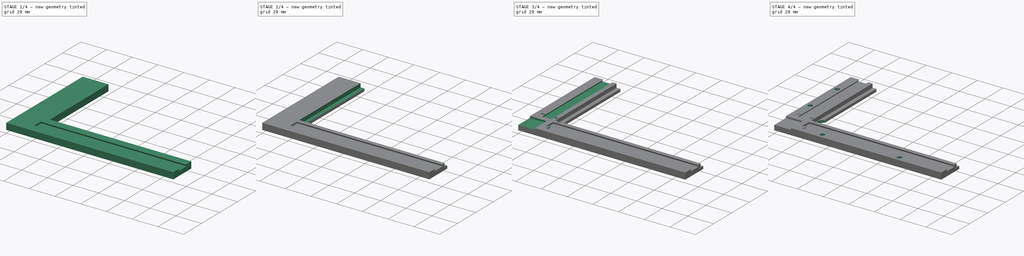
[diagram: build sequence overview — one tinted view per stage of 4, left to right]
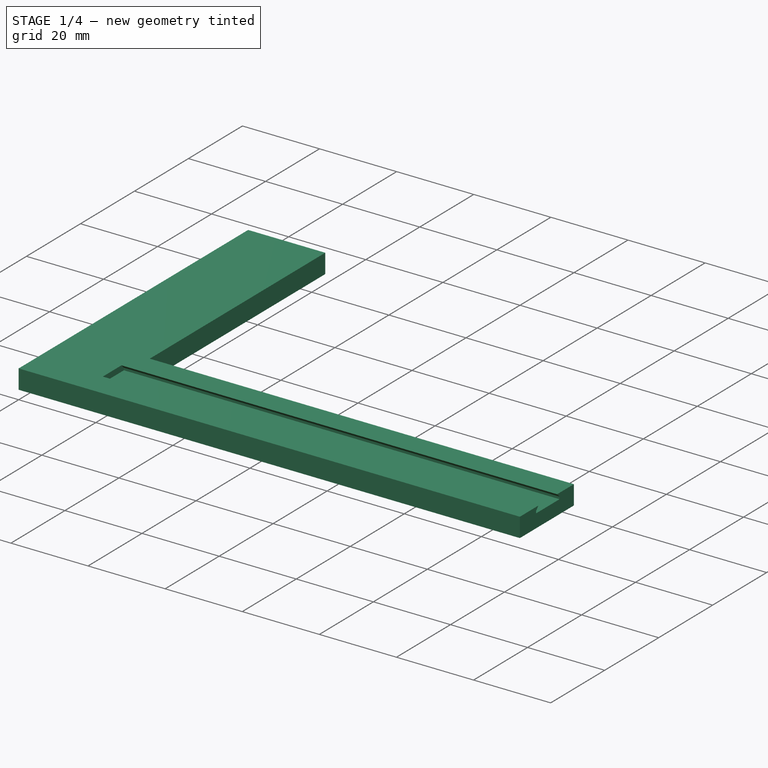
[diagram: stage 1 of 4 — iso view after this stage's code; geometry added in this stage tinted green]
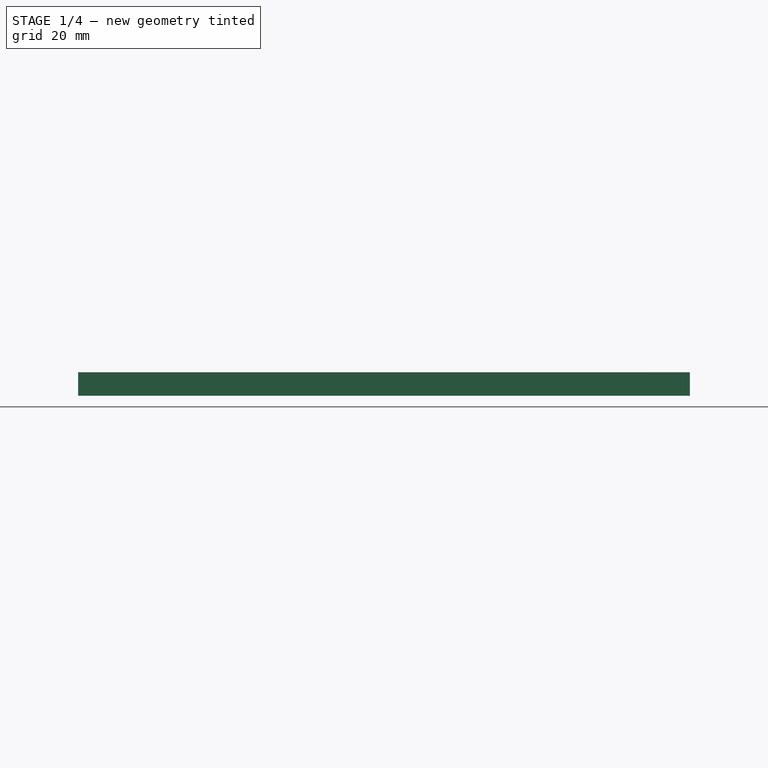
[diagram: stage 1 of 4 — front view after this stage's code; geometry added in this stage tinted green]
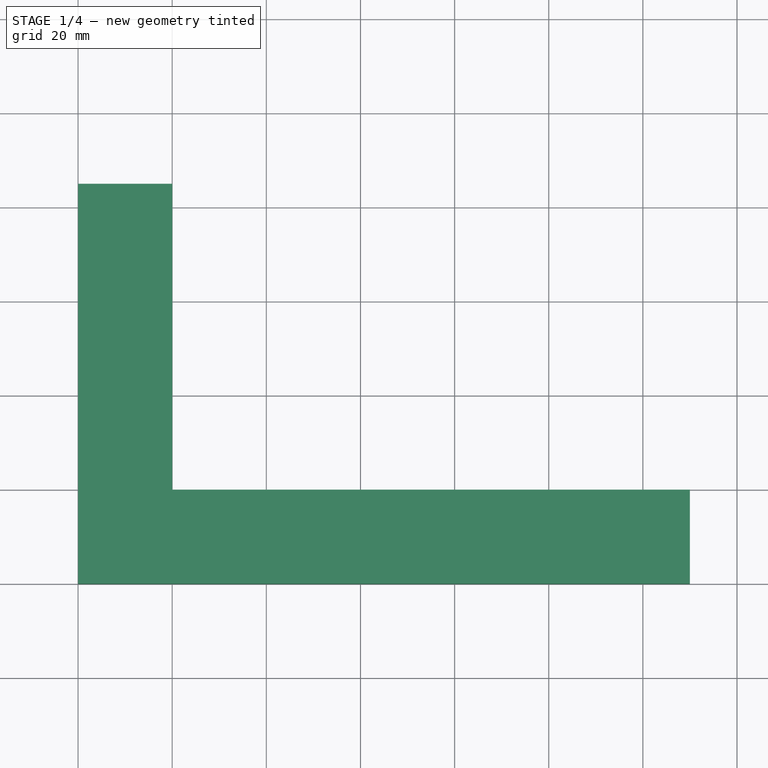
[diagram: stage 1 of 4 — top view after this stage's code; geometry added in this stage tinted green]
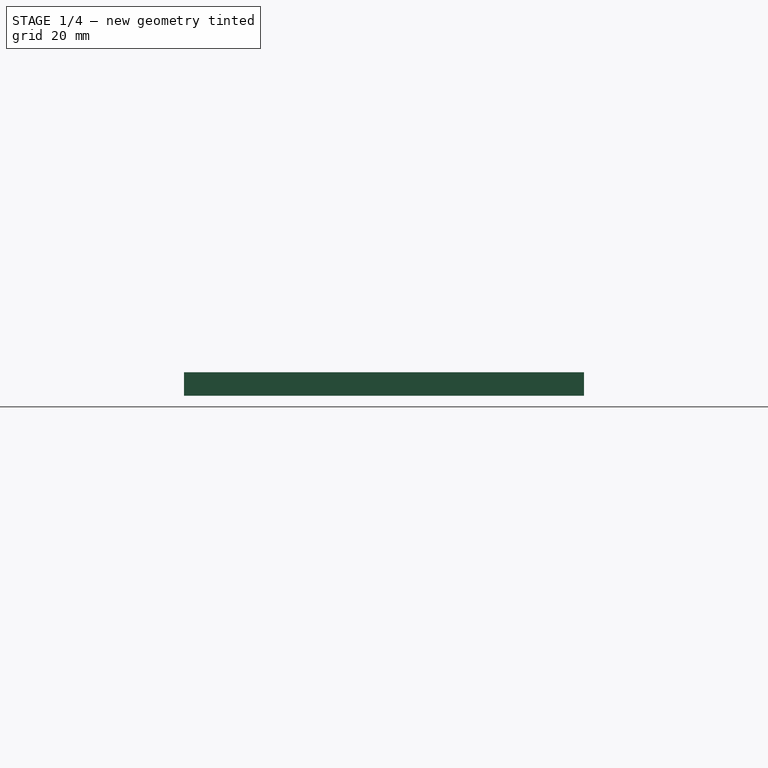
[diagram: stage 1 of 4 — right view after this stage's code; geometry added in this stage tinted green]
FCSTD DOCUMENT  (FreeCAD 0.16R6563 (Git))
Label: tape holder
License: All rights reserved
LicenseURL: http://en.wikipedia.org/wiki/All_rights_reserved
objects: Sketcher::SketchObject×9, PartDesign::Pocket×7, PartDesign::Pad×2
note: 27 computed .brp shape members not serialized (recipe doc carries the construction recipe); baked Part::Feature solids carry a one-line shape summary decoded from their .brp

FEATURE [Sketcher::SketchObject] Sketch
  sketch-geometry (6):
    g0: LineSegment StartX=0 StartY=0 StartZ=0 EndX=0 EndY=85 EndZ=0
    g1: LineSegment StartX=0 StartY=85 StartZ=0 EndX=20 EndY=85 EndZ=0
    g2: LineSegment StartX=20 StartY=85 StartZ=0 EndX=20 EndY=20 EndZ=0
    g3: LineSegment StartX=20 StartY=20 StartZ=0 EndX=130 EndY=20 EndZ=0
    g4: LineSegment StartX=130 StartY=20 StartZ=0 EndX=130 EndY=0 EndZ=0
    g5: LineSegment StartX=130 StartY=0 StartZ=0 EndX=0 EndY=0 EndZ=0
  constraints (17):
    c: Coincident(g-1,g0)
    c: PointOnObject(g0,g-2)
    c: Coincident(g0,g1)
    c: Horizontal(g1)
    c: Coincident(g1,g2)
    c: Vertical(g2)
    c: Coincident(g2,g3)
    c: Horizontal(g3)
    c: Coincident(g3,g4)
    c: Vertical(g4)
    c: Coincident(g4,g5)
    c: Horizontal(g5)
    c: DistanceX(g1) = 20
    c: DistanceY(g4) = -20
    c: Coincident(g-1,g5)
    c: DistanceX(g5) = -130
    c: DistanceY(g0) = 85
FEATURE [PartDesign::Pad] Pad
  Length = 5
  Length2 = 100
  Sketch = -> Sketch
  Type = 0
FEATURE [Sketcher::SketchObject] Sketch001
  Placement = pos=(130,0,0) rot=(0.57735,0.57735,0.57735;2.0944rad)
  Support = -> Pad [Face5]
  sketch-geometry (6):
    g0: LineSegment StartX=6 StartY=3.5 StartZ=0 EndX=6 EndY=4.1 EndZ=0
    g1: LineSegment StartX=6 StartY=4.1 StartZ=0 EndX=8.55752 EndY=6.65752 EndZ=0
    g2: LineSegment StartX=8.55752 StartY=6.65752 StartZ=0 EndX=12.1425 EndY=6.65752 EndZ=0
    g3: LineSegment StartX=12.1425 StartY=6.65752 StartZ=0 EndX=14.7 EndY=4.1 EndZ=0
    g4: LineSegment StartX=14.7 StartY=4.1 StartZ=0 EndX=14.7 EndY=3.5 EndZ=0
    g5: LineSegment StartX=14.7 StartY=3.5 StartZ=0 EndX=6 EndY=3.5 EndZ=0
  constraints (17):
    c: Vertical(g0)
    c: Coincident(g0,g1)
    c: Coincident(g1,g2)
    c: Horizontal(g2)
    c: Coincident(g2,g3)
    c: Coincident(g3,g4)
    c: Vertical(g4)
    c: Coincident(g4,g5)
    c: Horizontal(g5)
    c: Coincident(g0,g5)
    c: DistanceY(g0) = 0.6
    c: DistanceY(g4) = -0.6
    c: DistanceX(g5) = -8.7
    c: Angle(g1) = 0.785398
    c: Angle(g3) = -0.785398
    c: DistanceY(g-1,g0) = 3.5
    c: DistanceX(g-1,g0) = 6
FEATURE [PartDesign::Pocket] Pocket
  Length = 113
  Sketch = -> Sketch001
  Type = 0
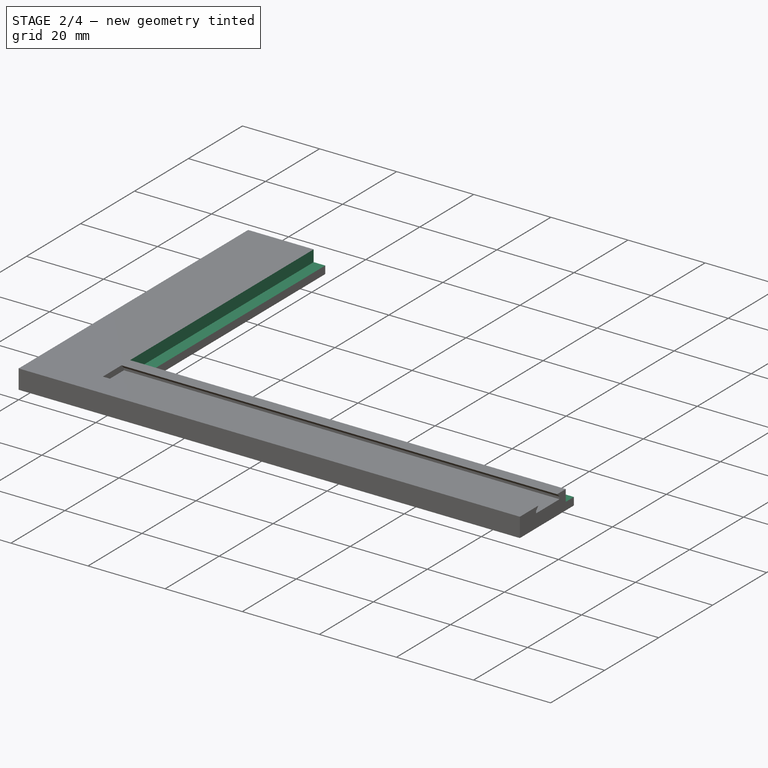
[diagram: stage 2 of 4 — iso view after this stage's code; geometry added in this stage tinted green]
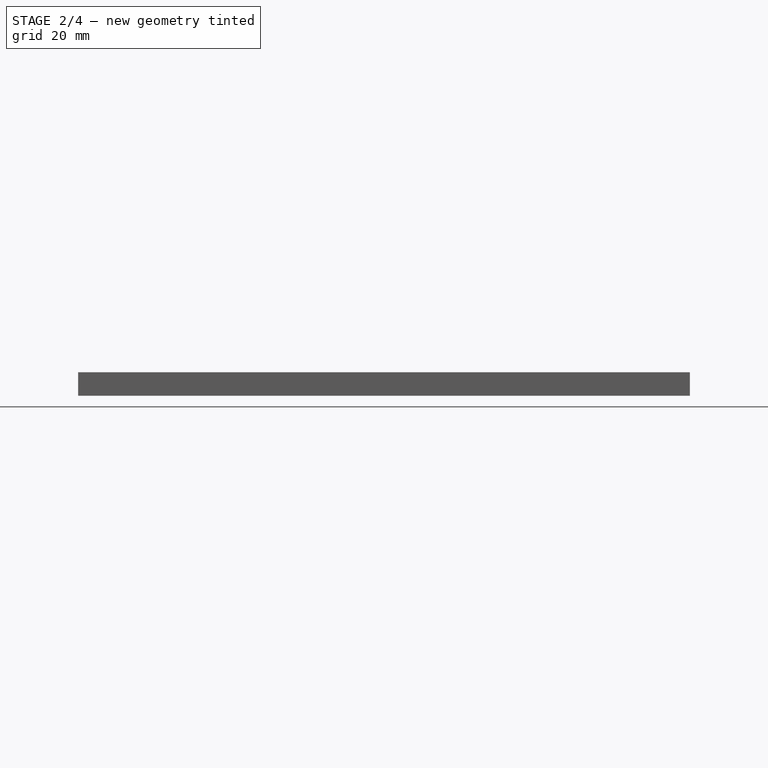
[diagram: stage 2 of 4 — front view after this stage's code; geometry added in this stage tinted green]
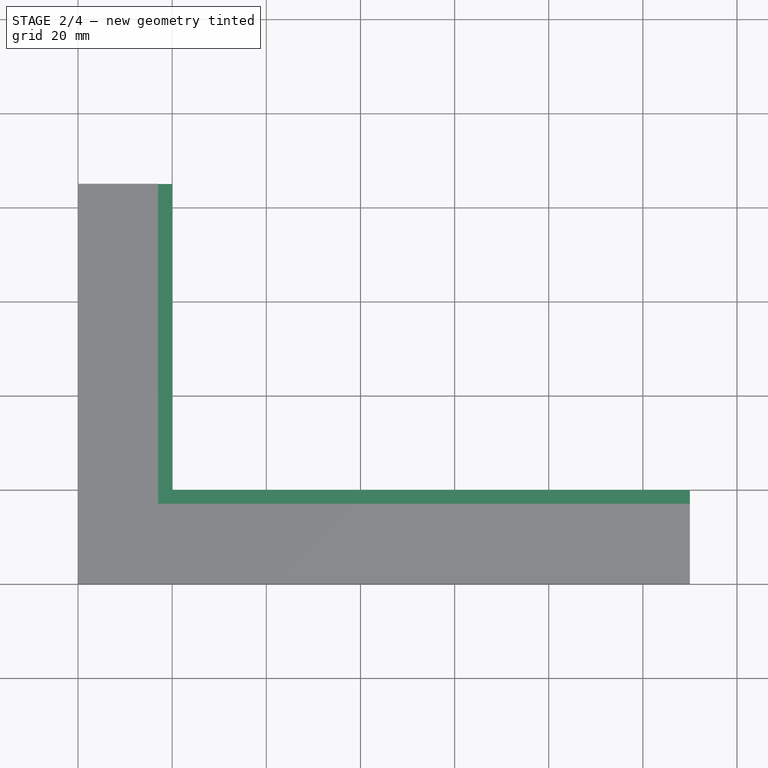
[diagram: stage 2 of 4 — top view after this stage's code; geometry added in this stage tinted green]
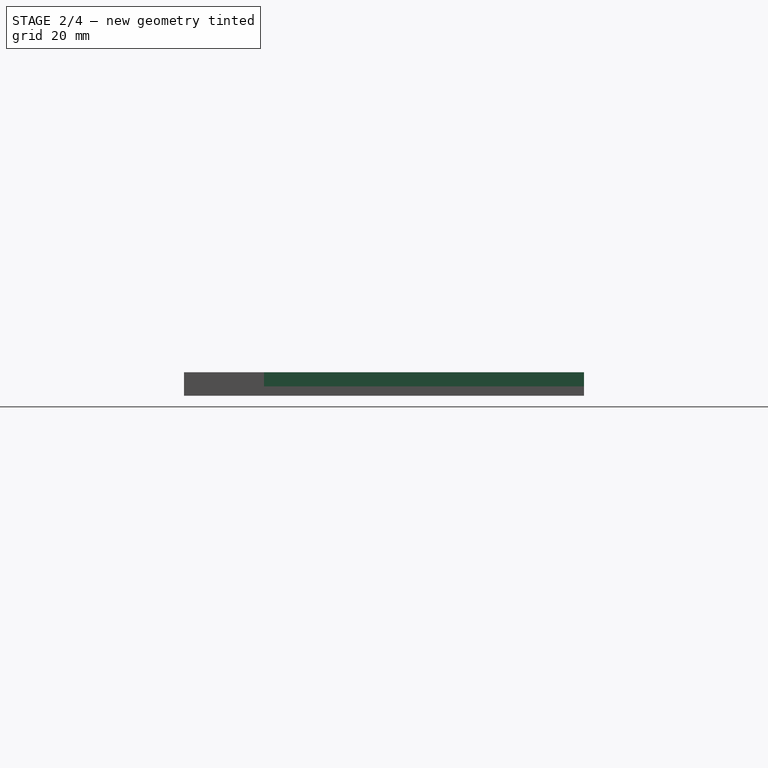
[diagram: stage 2 of 4 — right view after this stage's code; geometry added in this stage tinted green]
FEATURE [Sketcher::SketchObject] Sketch002
  Placement = pos=(130,0,0) rot=(0.57735,0.57735,0.57735;2.0944rad)
  Support = -> Pocket [Face6]
  sketch-geometry (4):
    g0: LineSegment StartX=17 StartY=2 StartZ=0 EndX=21 EndY=2 EndZ=0
    g1: LineSegment StartX=21 StartY=2 StartZ=0 EndX=21 EndY=6 EndZ=0
    g2: LineSegment StartX=21 StartY=6 StartZ=0 EndX=17 EndY=6 EndZ=0
    g3: LineSegment StartX=17 StartY=6 StartZ=0 EndX=17 EndY=2 EndZ=0
  constraints (8):
    c: Coincident(g0,g1)
    c: Coincident(g1,g2)
    c: Coincident(g2,g3)
    c: Coincident(g3,g0)
    c: Horizontal(g0)
    c: Horizontal(g2)
    c: Vertical(g1)
    c: Vertical(g3)
FEATURE [PartDesign::Pocket] Pocket001
  Length = 113
  Sketch = -> Sketch002
  Type = 0
FEATURE [Sketcher::SketchObject] Sketch003
  Placement = pos=(0,85,0) rot=(0,0.707107,0.707107;3.14159rad)
  Support = -> Pocket001 [Face3]
  sketch-geometry (4):
    g0: LineSegment StartX=-17 StartY=2 StartZ=0 EndX=-20.3892 EndY=2 EndZ=0
    g1: LineSegment StartX=-20.3892 StartY=2 StartZ=0 EndX=-20.3892 EndY=6 EndZ=0
    g2: LineSegment StartX=-20.3892 StartY=6 StartZ=0 EndX=-17 EndY=6 EndZ=0
    g3: LineSegment StartX=-17 StartY=6 StartZ=0 EndX=-17 EndY=2 EndZ=0
  constraints (8):
    c: Coincident(g0,g1)
    c: Coincident(g1,g2)
    c: Coincident(g2,g3)
    c: Coincident(g3,g0)
    c: Horizontal(g0)
    c: Horizontal(g2)
    c: Vertical(g1)
    c: Vertical(g3)
FEATURE [PartDesign::Pocket] Pocket002
  Length = 68
  Sketch = -> Sketch003
  Type = 0
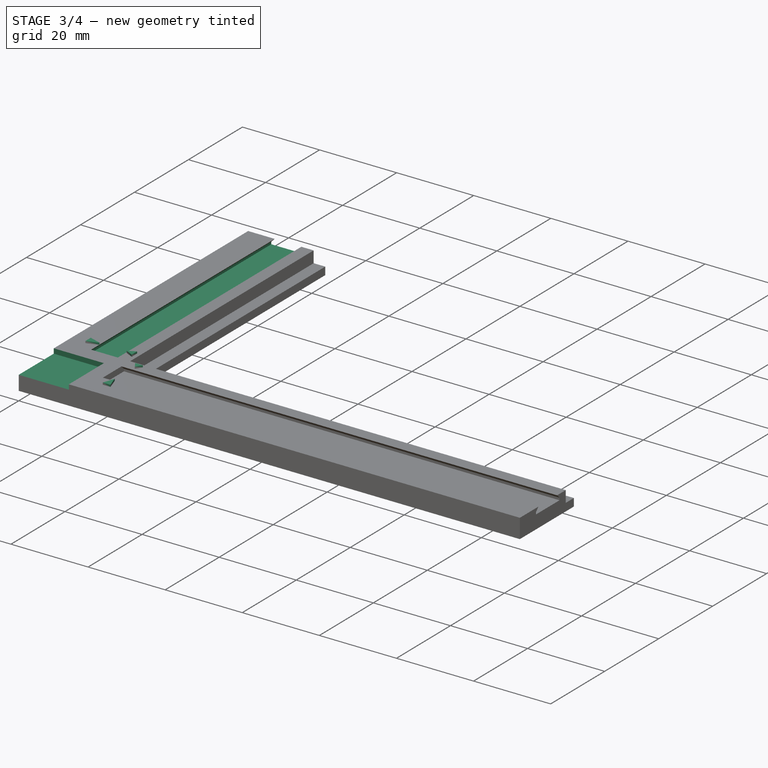
[diagram: stage 3 of 4 — iso view after this stage's code; geometry added in this stage tinted green]
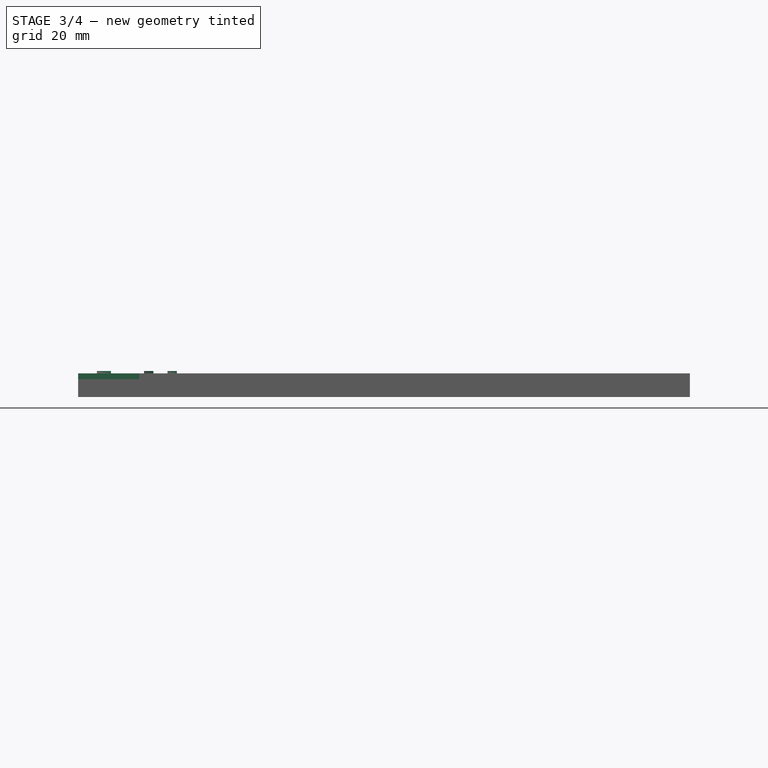
[diagram: stage 3 of 4 — front view after this stage's code; geometry added in this stage tinted green]
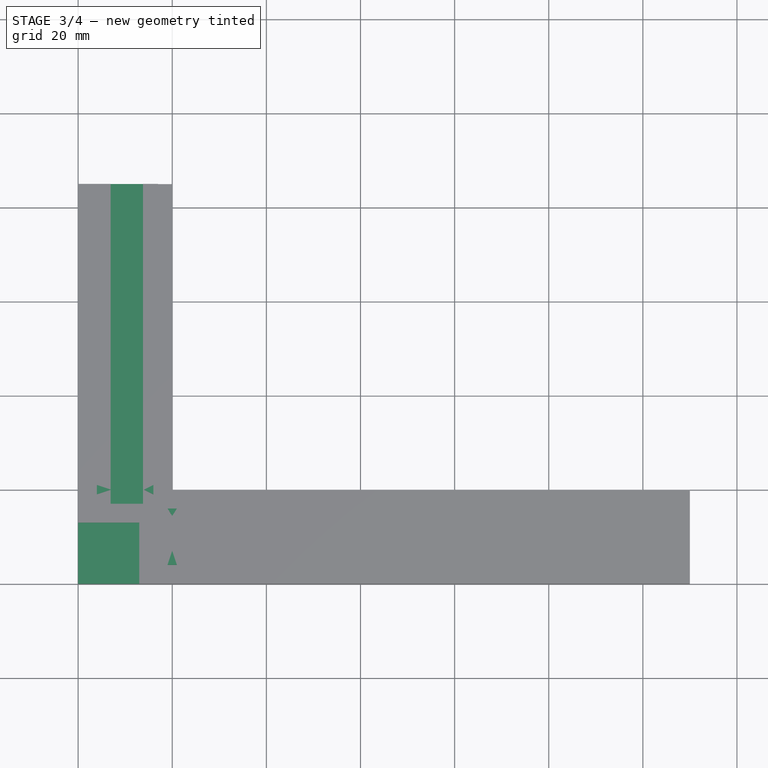
[diagram: stage 3 of 4 — top view after this stage's code; geometry added in this stage tinted green]
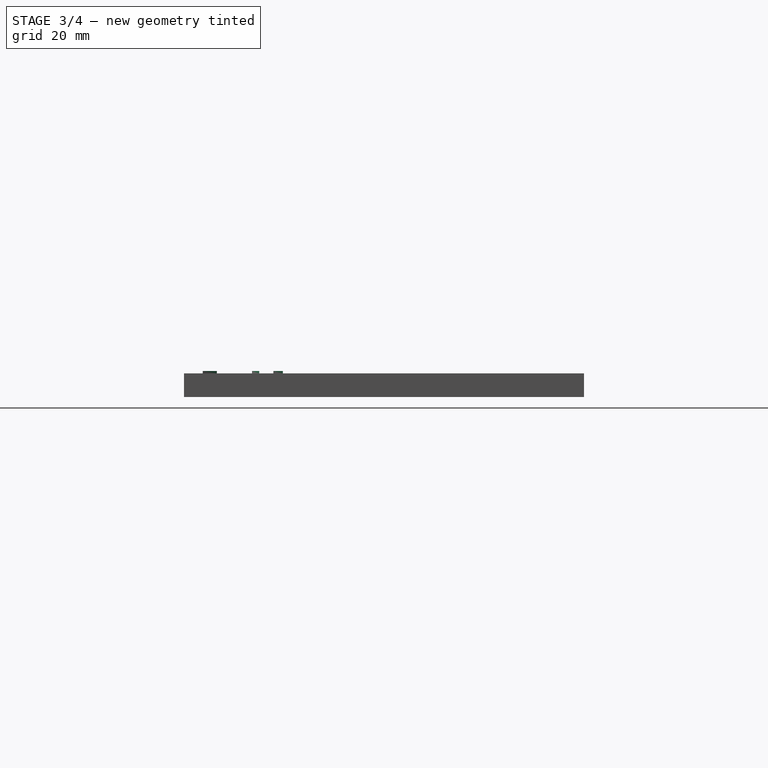
[diagram: stage 3 of 4 — right view after this stage's code; geometry added in this stage tinted green]
FEATURE [Sketcher::SketchObject] Sketch004
  Placement = pos=(0,85,0) rot=(0,0.707107,0.707107;3.14159rad)
  Support = -> Pocket002 [Face3]
  sketch-geometry (6):
    g0: LineSegment StartX=-14.7 StartY=3.5 StartZ=0 EndX=-14.7 EndY=4.1 EndZ=0
    g1: LineSegment StartX=-14.7 StartY=4.1 StartZ=0 EndX=-13.0198 EndY=5.78019 EndZ=0
    g2: LineSegment StartX=-13.0198 StartY=5.78019 StartZ=0 EndX=-7.68019 EndY=5.78019 EndZ=0
    g3: LineSegment StartX=-7.68019 StartY=5.78019 StartZ=0 EndX=-6 EndY=4.1 EndZ=0
    g4: LineSegment StartX=-6 StartY=4.1 StartZ=0 EndX=-6 EndY=3.5 EndZ=0
    g5: LineSegment StartX=-6 StartY=3.5 StartZ=0 EndX=-14.7 EndY=3.5 EndZ=0
  constraints (17):
    c: Vertical(g0)
    c: Coincident(g0,g1)
    c: Coincident(g1,g2)
    c: Horizontal(g2)
    c: Coincident(g2,g3)
    c: Coincident(g3,g4)
    c: Vertical(g4)
    c: Coincident(g4,g5)
    c: Coincident(g5,g0)
    c: Horizontal(g5)
    c: Angle(g1) = 0.785398
    c: Angle(g3) = -0.785398
    c: DistanceX(g5) = -8.7
    c: DistanceY(g0) = 0.6
    c: DistanceY(g4) = -0.6
    c: DistanceY(g-1,g4) = 3.5
    c: DistanceX(g-1,g4) = -6
FEATURE [PartDesign::Pocket] Pocket003
  Length = 68
  Sketch = -> Sketch004
  Type = 0
FEATURE [Sketcher::SketchObject] Sketch005
  Placement = pos=(0,0,5) rot=(0,0,1;0rad)
  Support = -> Pocket003 [Face5]
  sketch-geometry (4):
    g0: LineSegment StartX=13 StartY=13 StartZ=0 EndX=-1 EndY=13 EndZ=0
    g1: LineSegment StartX=-1 StartY=13 StartZ=0 EndX=-1 EndY=-1 EndZ=0
    g2: LineSegment StartX=-1 StartY=-1 StartZ=0 EndX=13 EndY=-1 EndZ=0
    g3: LineSegment StartX=13 StartY=-1 StartZ=0 EndX=13 EndY=13 EndZ=0
  constraints (8):
    c: Coincident(g0,g1)
    c: Coincident(g1,g2)
    c: Coincident(g2,g3)
    c: Coincident(g3,g0)
    c: Horizontal(g0)
    c: Horizontal(g2)
    c: Vertical(g1)
    c: Vertical(g3)
FEATURE [PartDesign::Pocket] Pocket004  label="chip align"
  Length = 1.25
  Sketch = -> Sketch005
  Type = 0
  UpToFace = -> Pocket003 [Face13]
FEATURE [Sketcher::SketchObject] Sketch006
  Placement = pos=(0,0,5) rot=(0,0,1;0rad)
  Support = -> Pocket004 [Face4]
  sketch-geometry (12):
    g0: LineSegment StartX=20 StartY=7 StartZ=0 EndX=19 EndY=4 EndZ=0
    g1: LineSegment StartX=19 StartY=4 StartZ=0 EndX=21 EndY=4 EndZ=0
    g2: LineSegment StartX=21 StartY=4 StartZ=0 EndX=20 EndY=7 EndZ=0
    g3: LineSegment StartX=20 StartY=14.4405 StartZ=0 EndX=19 EndY=16 EndZ=0
    g4: LineSegment StartX=19 StartY=16 StartZ=0 EndX=21 EndY=16 EndZ=0
    g5: LineSegment StartX=21 StartY=16 StartZ=0 EndX=20 EndY=14.4405 EndZ=0
    g6: LineSegment StartX=14 StartY=20 StartZ=0 EndX=16 EndY=19 EndZ=0
    g7: LineSegment StartX=16 StartY=19 StartZ=0 EndX=16 EndY=21 EndZ=0
    g8: LineSegment StartX=16 StartY=21 StartZ=0 EndX=14 EndY=20 EndZ=0
    g9: LineSegment StartX=7 StartY=20 StartZ=0 EndX=4 EndY=21 EndZ=0
    g10: LineSegment StartX=4 StartY=21 StartZ=0 EndX=4 EndY=19 EndZ=0
    g11: LineSegment StartX=4 StartY=19 StartZ=0 EndX=7 EndY=20 EndZ=0
  constraints (16):
    c: Coincident(g0,g1)
    c: Horizontal(g1)
    c: Coincident(g1,g2)
    c: Coincident(g2,g0)
    c: Coincident(g3,g4)
    c: Horizontal(g4)
    c: Coincident(g4,g5)
    c: Coincident(g5,g3)
    c: Coincident(g6,g7)
    c: Vertical(g7)
    c: Coincident(g7,g8)
    c: Coincident(g8,g6)
    c: Coincident(g9,g10)
    c: Vertical(g10)
    c: Coincident(g10,g11)
    c: Coincident(g11,g9)
FEATURE [PartDesign::Pad] Pad001  label="arrows"
  Length = 0.5
  Length2 = 100
  Sketch = -> Sketch006
  Type = 0
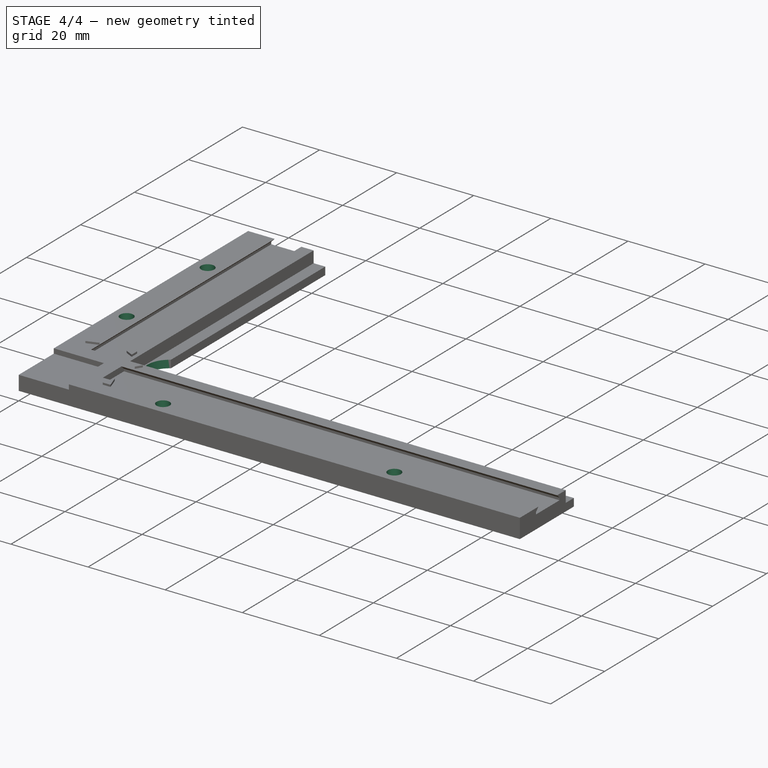
[diagram: stage 4 of 4 — iso view after this stage's code; geometry added in this stage tinted green]
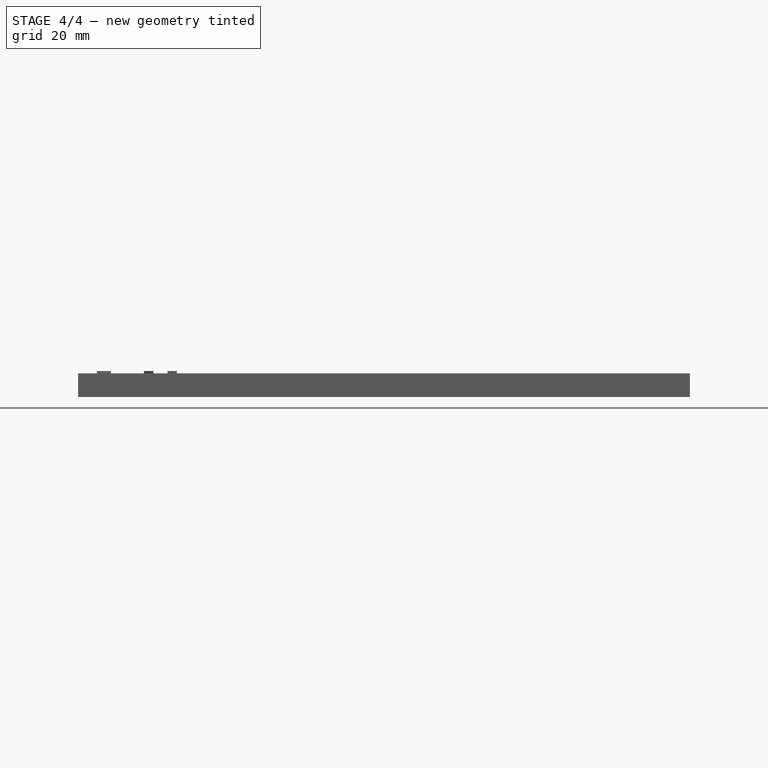
[diagram: stage 4 of 4 — front view after this stage's code; geometry added in this stage tinted green]
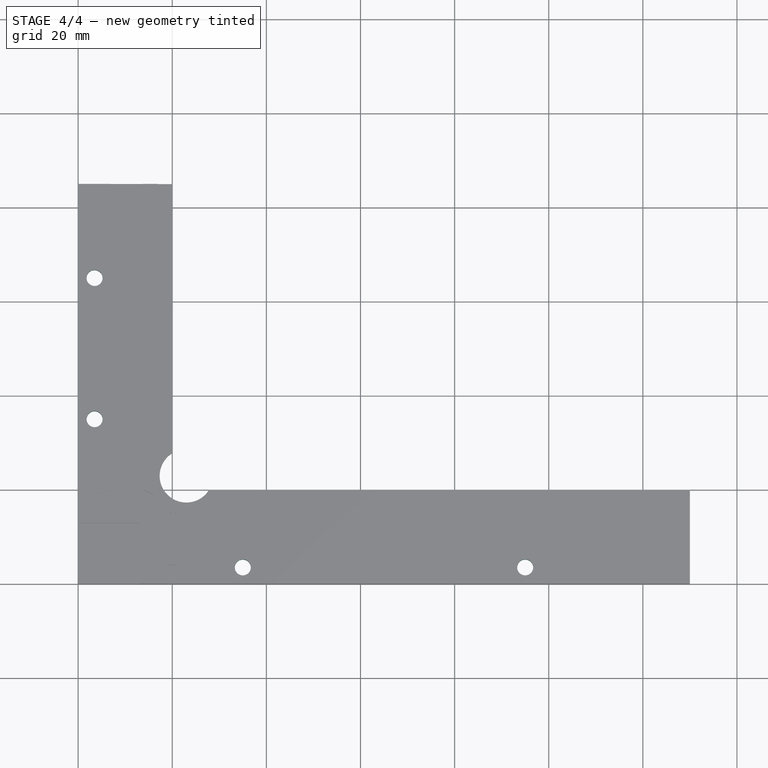
[diagram: stage 4 of 4 — top view after this stage's code; geometry added in this stage tinted green]
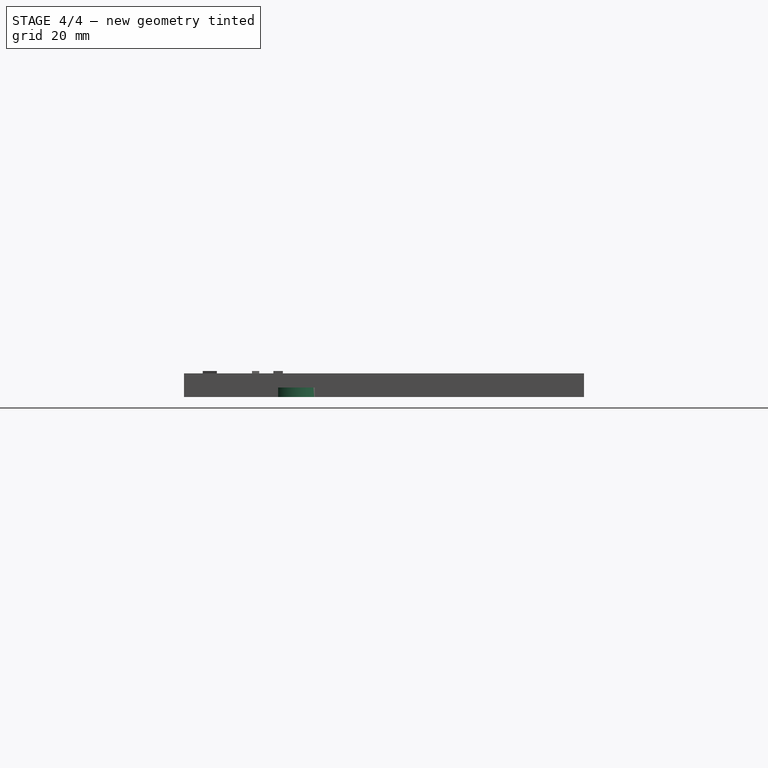
[diagram: stage 4 of 4 — right view after this stage's code; geometry added in this stage tinted green]
FEATURE [Sketcher::SketchObject] Sketch007
  Placement = pos=(0,0,0) rot=(1,0,0;3.14159rad)
  Support = -> Pad001 [Face2]
  sketch-geometry (1):
    g0: Circle CenterX=23 CenterY=-23 CenterZ=0 NormalX=0 NormalY=0 NormalZ=1 Radius=5.67371
FEATURE [PartDesign::Pocket] Pocket005
  Length = 5
  Sketch = -> Sketch007
  Type = 0
FEATURE [Sketcher::SketchObject] Sketch008
  Placement = pos=(0,0,0) rot=(1,0,0;3.14159rad)
  Support = -> Pocket005 [Face2]
  sketch-geometry (4):
    g0: Circle CenterX=35 CenterY=-3.5 CenterZ=0 NormalX=0 NormalY=0 NormalZ=1 Radius=1.7
    g1: Circle CenterX=95 CenterY=-3.5 CenterZ=0 NormalX=0 NormalY=0 NormalZ=1 Radius=1.7
    g2: Circle CenterX=3.5 CenterY=-35 CenterZ=0 NormalX=0 NormalY=0 NormalZ=1 Radius=1.7
    g3: Circle CenterX=3.5 CenterY=-65 CenterZ=0 NormalX=0 NormalY=0 NormalZ=1 Radius=1.7
  constraints (12):
    c: Equal(g0,g1)
    c: Equal(g1,g2)
    c: Equal(g2,g3)
    c: Radius(g0) = 1.7
    c: DistanceX(g-1,g0) = 35
    c: DistanceY(g-1,g2) = -35
    c: DistanceX(g-1,g1) = 95
    c: DistanceY(g-1,g3) = -65
    c: DistanceX(g-1,g3) = 3.5
    c: DistanceX(g-1,g2) = 3.5
    c: DistanceY(g-1,g0) = -3.5
    c: DistanceY(g-1,g1) = -3.5
FEATURE [PartDesign::Pocket] Pocket006
  Length = 5
  Sketch = -> Sketch008
  Type = 1
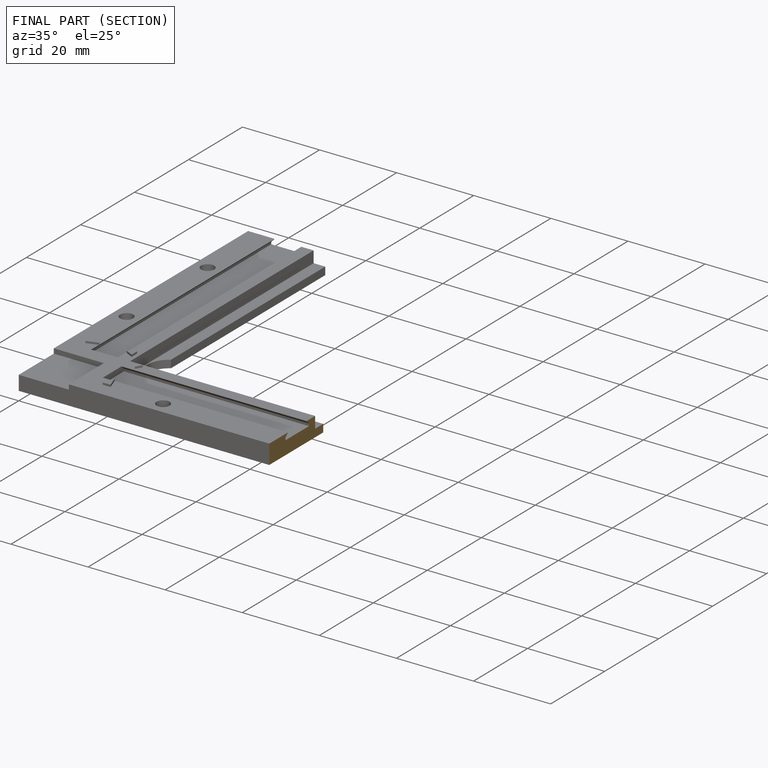
[diagram: finished part — half-section view (interior)]
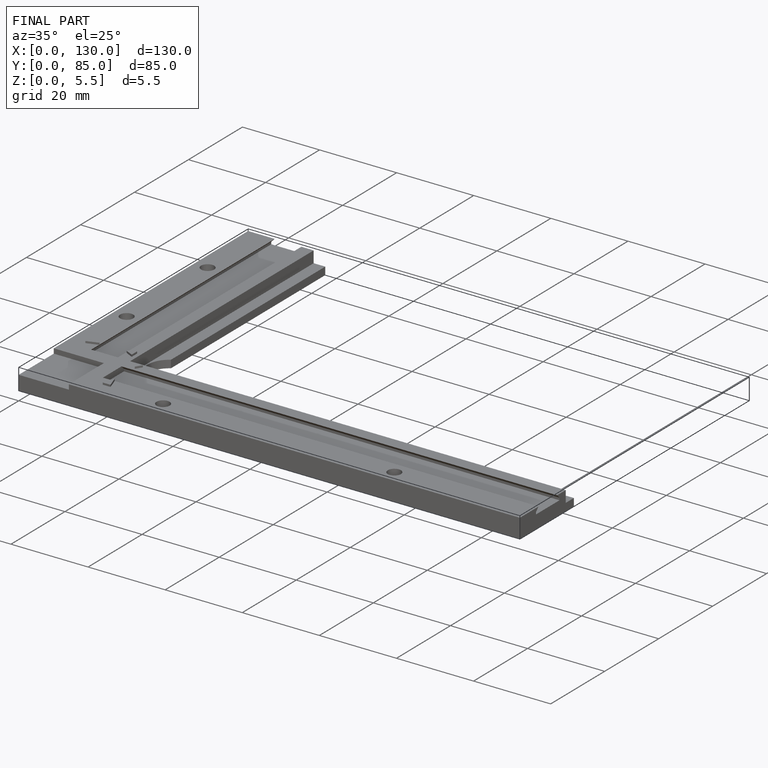
[diagram: finished part — iso view with bounding-box wireframe]
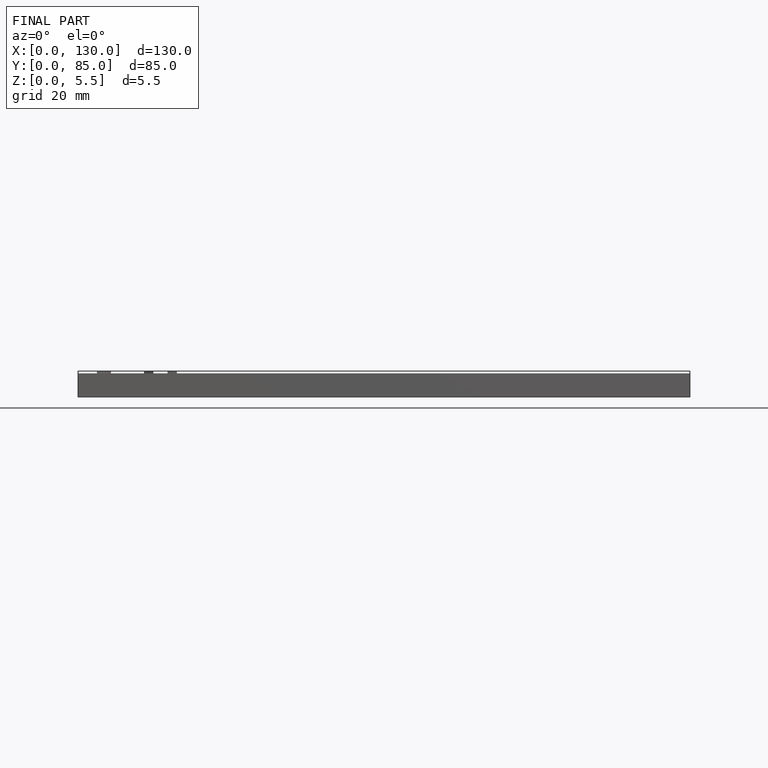
[diagram: finished part — front view with bounding-box wireframe]
